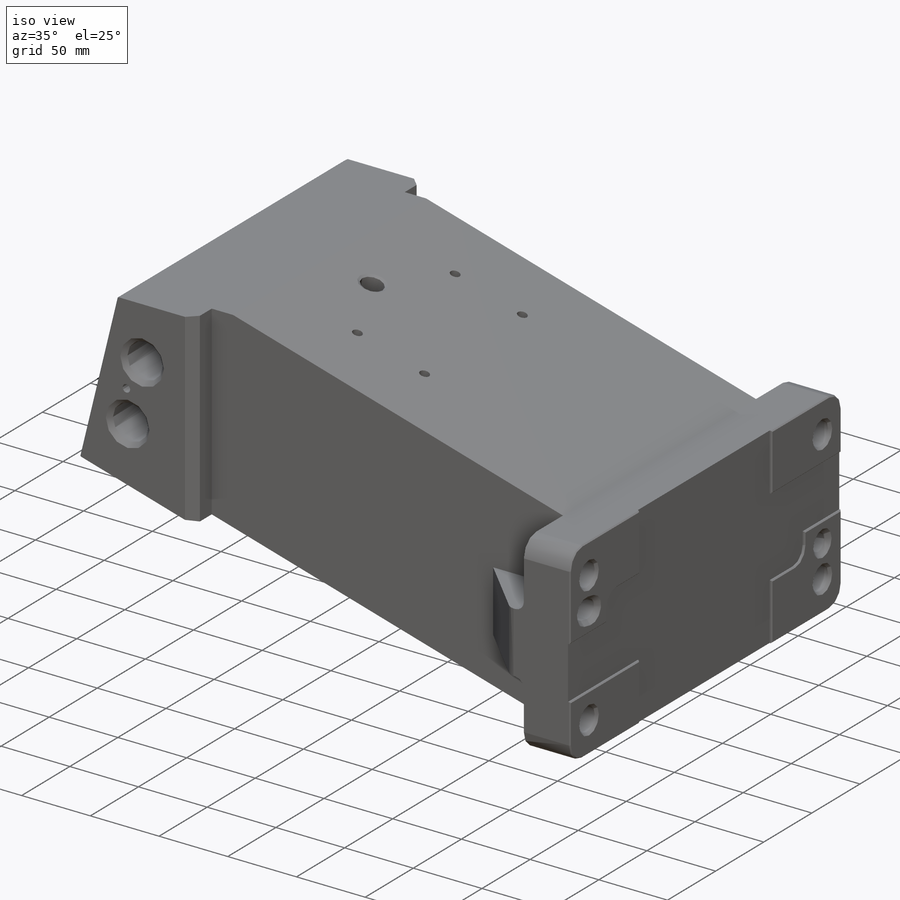
[diagram: iso view]
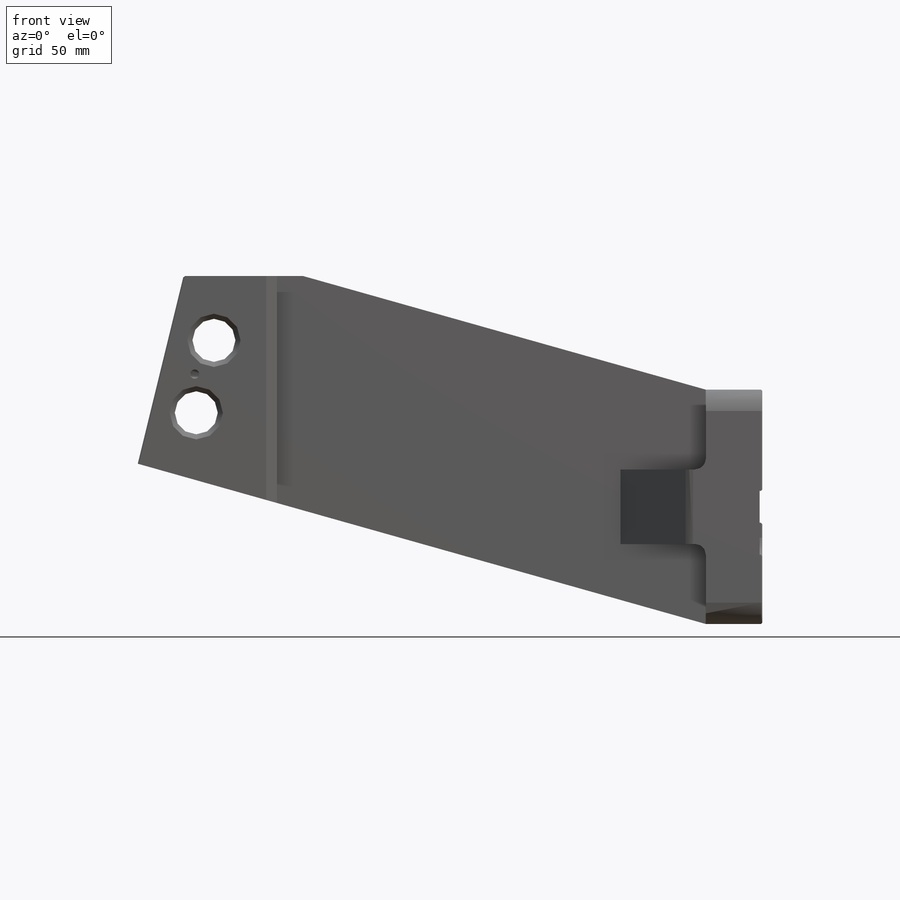
[diagram: front view]
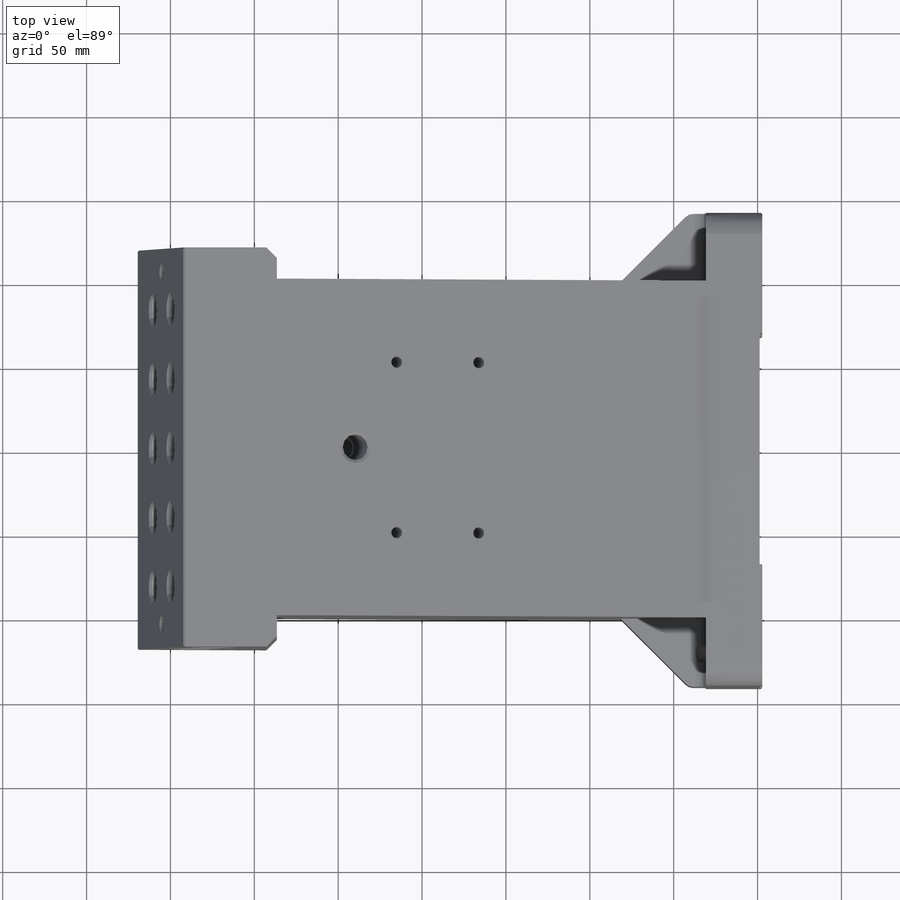
[diagram: top view]
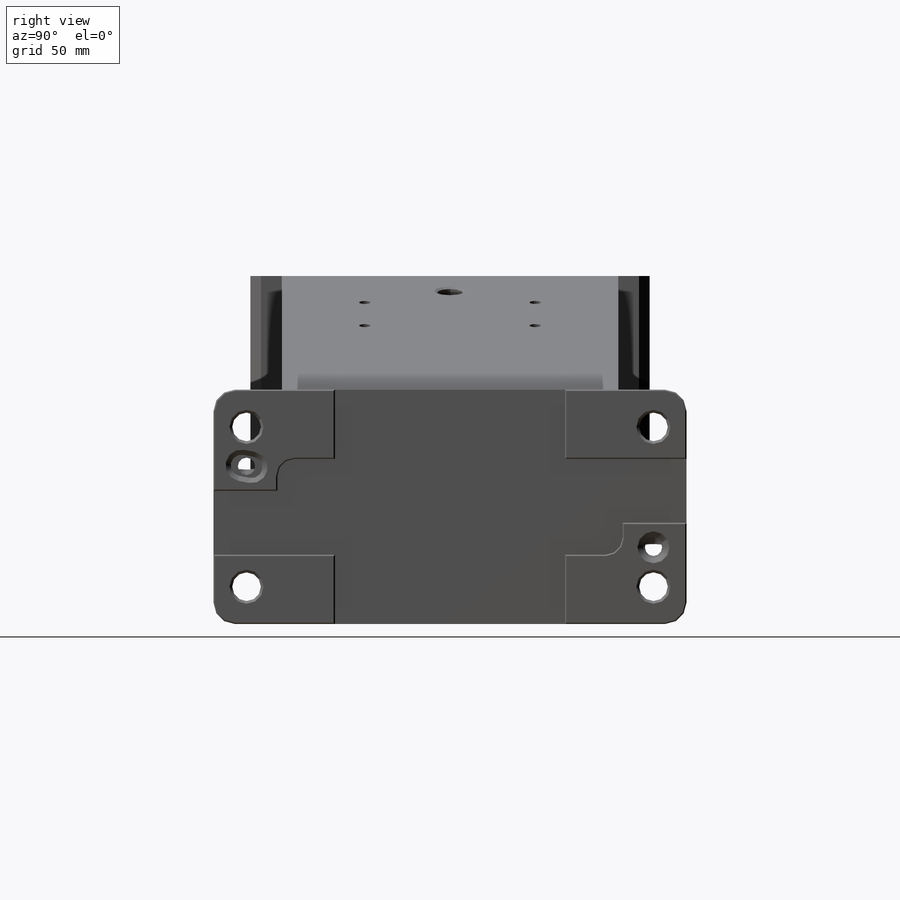
[diagram: right view]
SOLIDWORKS PART (.sldprt)
format: sldprt  version: not decoded by parser v0  size: 1,432,576 bytes
history: native  units: mm
features: sketch x38, hole x12, extrude x10, cut_extrude x6, fillet x4, chamfer x4, plane x2, material x1, mirror x1 (+15 scaffold rows collapsed; 1 parser-record rows omitted)
feature tree (94):
  scaffold x15  (default folders/planes/origin — collapsed)
  material  "6061-T6 Al"
  sketch  "Sketch1"  dims[c1.D1=~70.64375mm c1.D2=374.4214mm c1.D3=374.4214mm c1.D4=~410.266795mm c2.D2=~321.02298mm c2.D1=74.93mm c2.D3=127.0mm c2.D4=114.3mm c2.D5=38.1mm c2.D6=~318.410922mm c3.D6=~13.607324deg c3.D7=12.7mm c3.D8=12.7mm c3.D3=3.175mm c4.D6=88.9mm c4.D7=66.04mm c4.D4=35.56mm c4.D5=114.3mm c4.D1=25.4mm c4.D3=~50.606918mm c5.D3=30.0deg c6.D3=16.51mm c6.D1=90.043mm c6.D6=90.043mm c6.D7=134.493mm c6.D8=~24.54402mm c6.D2=~354.69068mm c7.D3=25.4mm]
  extrude  "Extrude1"  Depth=200.66mm
  sketch  "Sketch2"  dims[D1=40.64mm]
  extrude  "Extrude2 feet"  Depth=32.512mm
  sketch  "Sketch31"  dims[D1=63.5mm]
  extrude  "Extrude6"  Depth=18.669mm RestraintType=2 Value=0mm cosRestraintComp:1=0mm cosRestraintComp:2=0mm cosRestraintComp:3=0mm cosRestraintComp:4=0mm cosRestraintComp:5=0mm cosRestraintComp:6=0mm Unit=3000mm AnalysisType=0mm MeshType=0mm cosRestraintCompCheck1=1000mm cosRestraintCompCheck2=0mm cosRestraintCompCheck3=0mm cosRestraintCompCheck4=0mm
  extrude  "BSIDef1-92"  Depth=12000mm ID=12000mm bsiID=0
  plane  "Plane center of mass"  Offset=27.0002mm
  extrude  "Cosmos:AttributesReplaced"  Depth=1000mm cosmosAttributesReplaced=1000mm cosmosVersionNumber=0mm cosAttributesReplaced=0
  sketch  "Sketch35"  dims[c1.D1=100.0mm c2.D1=~8.151272deg c3.D1=100.0mm c4.D1=13.71deg]
  cut_extrude  "Extrude7"  [1 undecoded]
  sketch  "Sketch54"  dims[D1=~0.26162mm]
  extrude  "Extrude17"  [1 undecoded]
  hole  "1 (1) Diameter Hole1"  Diameter=25.654mm Depth=237.998mm
  sketch  "Sketch37"  dims[D1=26.67mm D2=44.45mm D3=4.699mm]
  sketch  "Sketch36"  dims[hole-wizard template sketch: 46 standard entries collapsed; hole parameters kept: c15.Thru Hole Dia.=25.654mm c15.Thru Hole Depth=237.998mm c15.Near C'Sink Dia.=31.75mm c15.D4=~3.666174mm c15.Near C'Sink Angle=90.0deg c15.Far C'Sink Dia.=31.75mm c15.D6=~9.919017mm c15.Far C'Sink Angle=90.0deg]
  sketch  "Sketch43"  dims[D1=3.175mm]
  extrude  "Extrude9"  [1 undecoded]
  sketch  "Sketch44"
  extrude  "Extrude10"  [1 undecoded]
  sketch  "Sketch45"  dims[D1=0.0mm D2=0.0mm]
  extrude  "Extrude11"  Depth=35.56mm
  sketch  "Sketch48"  dims[c1.D1=25.4mm c1.D2=50.8mm c2.D1=44.45mm c2.D3=47.625mm]
  extrude  "Extrude12"  [1 undecoded]
  sketch  "Sketch49"
  cut_extrude  "Extrude13"  [1 undecoded]
  fillet  "Fillet1"  Radius=6.35mm
  chamfer  "Chamfer7"  Distance=6.35mm Angle=45deg
  sketch  "Sketch50"  dims[D1=31.75mm]
  cut_extrude  "Extrude14"  Depth=3.429mm
  fillet  "Fillet4"  Radius=12.7mm
  parser-record x1  (decoder bookkeeping rows leaked as tree rows — omitted from the tree; the rows remain in map.json)
  hole  "CBORE for 3/8 Socket Head Cap Screw1"  Diameter=9.525mm Depth=15.24mm
  sketch  "Sketch69"  dims[D1=209.55mm]
  sketch  "Sketch68"  dims[hole-wizard template sketch: 28 standard entries collapsed; hole parameters kept: c8.C'Bore Dia.=9.5758mm c8.C'Bore Depth=3.302mm c8.Near C'Sink Dia.=10.668mm c8.D6=~4.399409mm c8.Near C'Sink Angle=90.0deg c8.D7=~14.816244mm c8.Drill Angle=118.0deg]
  hole  "9/32 (0.28125) Diameter Hole1"  Diameter=7.14375mm Depth=25.4mm
  sketch  "Sketch73"
  sketch  "Sketch72"  dims[hole-wizard template sketch: 46 standard entries collapsed; hole parameters kept: c15.Hole Dia.=~7.14375mm c15.Hole Depth=25.4mm c15.D3=~14.816244mm c15.Drill Angle=118.0deg]
  hole  "7/32 (0.21875) Diameter Hole1"  Diameter=5.55625mm Depth=14.224mm
  sketch  "Sketch71"  dims[c1.D1=20.32mm c1.D2=~60.675175mm c2.D1=20.32mm]
  sketch  "Sketch70"  dims[hole-wizard template sketch: 47 standard entries collapsed; hole parameters kept: c15.Hole Depth=14.224mm c15.D3=~14.816244mm c15.Drill Angle=118.0deg]
  mirror  "Mirror1"
  hole  "11/16 (0.6875) Diameter Hole1"  Diameter=17.4625mm Depth=50.8mm
  sketch  "Sketch66"  dims[D1=41.275mm D2=44.45mm D3=36.449mm]
  sketch  "Sketch65"  dims[hole-wizard template sketch: 39 standard entries collapsed; hole parameters kept: c13.Hole Dia.=17.4625mm c13.Hole Depth=50.8mm c13.Near C'Sink Dia.=20.32mm c13.D4=~33.297463mm c13.Near C'Sink Angle=90.0deg c14.D5=~14.816244mm c14.Drill Angle=118.0deg]
  sketch  "Sketch74"  dims[D1=0.0mm D2=0.0mm]
  cut_extrude  "Extrude23"  Depth=1.905mm
  hole  "5/8 Clearance Hole2"  Diameter=17.06626mm Depth=33.655mm
  sketch  "Sketch76"  dims[D1=242.57mm D2=95.25mm D3=22.225mm]
  sketch  "Sketch75"  dims[hole-wizard template sketch: 54 standard entries collapsed; hole parameters kept: c17.Thru Hole Dia.=~17.06626mm c17.Thru Hole Depth=33.655mm c17.Far C'Sink Dia.=20.32mm c17.D4=~2.963249mm c17.Far C'Sink Angle=82.0deg]
  hole  "Heli-Coil for Lifting Eye"  Diameter=13.09624mm Depth=57.15mm
  sketch  "Sketch78"  dims[D1=88.9mm]
  sketch  "Sketch77"  dims[hole-wizard template sketch: 26 standard entries collapsed; hole parameters kept: c8.Tap Drill Dia.=~13.09624mm c8.Tap Drill Depth=57.15mm c8.Thread Major Dia.=~15.34668mm c8.Thread Depth=30.0736mm c8.Near C'Sink Dia.=19.05mm c8.D6=~4.399409mm c8.Near C'Sink Angle=120.0deg c8.D7=~14.816244mm c8.Drill Angle=118.0deg]
  hole  "9/16 (0.5625) Diameter Hole1"  Diameter=14.2875mm Depth=77.724mm
  sketch  "Sketch89"
  sketch  "Sketch88"  dims[hole-wizard template sketch: 46 standard entries collapsed; hole parameters kept: c15.Hole Dia.=14.2875mm c15.Hole Depth=77.724mm c15.D3=~14.816244mm c15.Drill Angle=118.0deg]
  hole  "1/2 (0.5) Diameter Hole1"  Diameter=12.72032mm Depth=25.4mm
  sketch  "Sketch80"  dims[D1=23.495mm]
  sketch  "Sketch79"  dims[hole-wizard template sketch: 39 standard entries collapsed; hole parameters kept: c13.Hole Dia.=~12.72032mm c13.Hole Depth=25.4mm c13.Near C'Sink Dia.=19.05mm c13.D4=~33.297463mm c13.Near C'Sink Angle=90.0deg c14.D5=~14.816244mm c14.Drill Angle=118.0deg]
  hole  "13/32 (0.40625) Diameter Hole1"  Diameter=10.31875mm Depth=38.1mm
  sketch  "Sketch82"
  sketch  "Sketch81"  dims[hole-wizard template sketch: 46 standard entries collapsed; hole parameters kept: c15.Hole Dia.=~10.31875mm c15.Hole Depth=38.1mm c15.D3=~14.816244mm c15.Drill Angle=118.0deg]
  sketch  "Sketch83"  dims[D1=6.35mm D2=23.495mm]
  cut_extrude  "Extrude24"  Depth=25.4mm
  hole  "13/32 (0.40625) Diameter Hole2"  Diameter=10.31875mm Depth=38.1mm
  sketch  "Sketch85"
  sketch  "Sketch84"  dims[hole-wizard template sketch: 46 standard entries collapsed; hole parameters kept: c15.Hole Dia.=~10.31875mm c15.Hole Depth=38.1mm c15.D3=~14.816244mm c15.Drill Angle=118.0deg]
  chamfer  "Chamfer9"  Distance=3.048mm Angle=45deg
  sketch  "Sketch86"  dims[D1=41.275mm D2=38.1mm D3=38.1mm D4=19.05mm]
  cut_extrude  "Extrude25"  [1 undecoded]
  fillet  "Fillet5"  Radius=10.16mm
  chamfer  "Chamfer10"  Distance=0.762mm Angle=45deg
  plane  "Plane2"  Offset=112.268mm
  fillet  "Fillet6"  Radius=6.35mm
  chamfer  "Chamfer11"  Distance=0.762mm Angle=45deg
  hole  "Tapped Hole for 1/4-20 Helicoil1"  Diameter=6.7564mm Depth=208.772351mm
  sketch  "Sketch92"  dims[D1=101.6mm D2=50.8mm D3=25.4mm]
  sketch  "Sketch91"  dims[hole-wizard template sketch: 42 standard entries collapsed; hole parameters kept: c12.Thru Tap Drill Depth=~208.772351mm c12.Thread Major Dia.=~8.09498mm c12.Thread Depth=15.7226mm c12.Near C'Sink Dia.=~9.36498mm c12.D6=~4.399409mm c12.Near C'Sink Angle=90.0deg c12.Far C'Sink Dia.=~9.36498mm c12.D8=~2.963249mm c12.Far C'Sink Angle=90.0deg]
decode coverage: 61 of 75 modeling features carry decoded parameters
note: ~ marks probable driven/reference dimensions
note: 7 parameter values undecoded
summary: Diameter pulled from absorbed wizard sketch | no parameter record found for 7 features
note: suppression state not decoded; provenance and decode notes live in map.json
